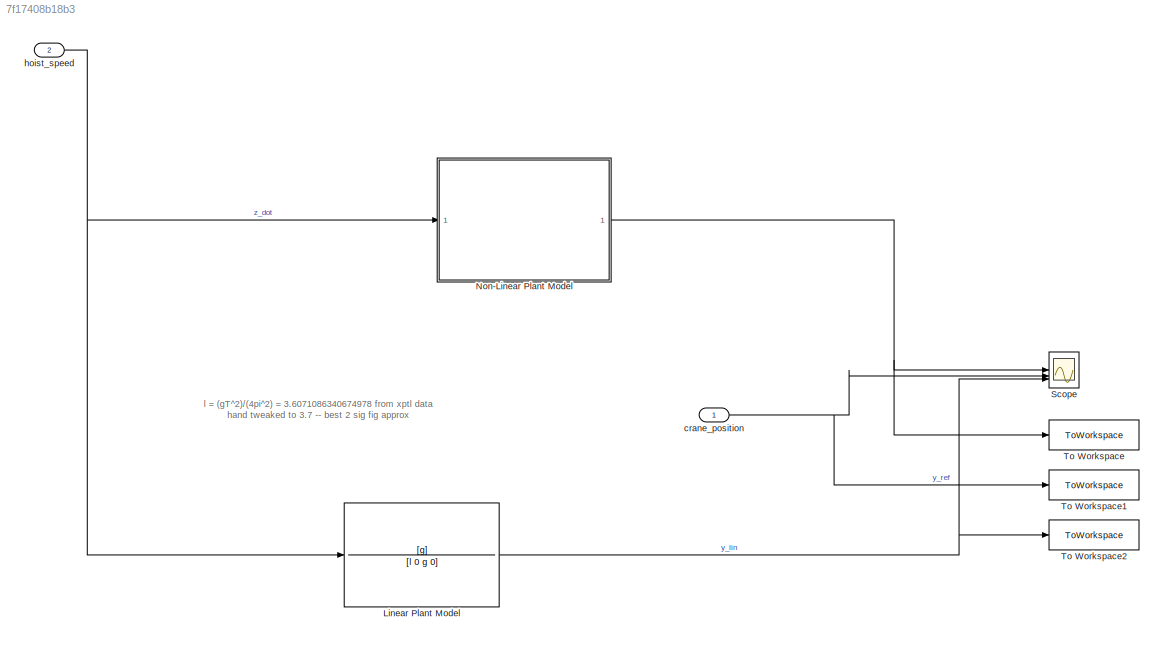
MODEL slx_7f17408b18b3
KIND model
CONFIG AbsTol = auto
CONFIG EnableMultiTasking = off
CONFIG FixedStep = auto
CONFIG MaxStep = auto
CONFIG MinStep = auto
CONFIG RelTol = 1e-3
CONFIG SampleTimeConstraint = Unconstrained
CONFIG SolverName = VariableStepAuto
CONFIG StartTime = 0.0
CONFIG StopTime = 10
WORKSPACE source: mxarray member
WORKSPACE g: Simulink.Parameter (value not decoded)
WORKSPACE l: Simulink.Parameter (value not decoded)
BLOCK [TransferFcn] Linear Plant Model
  Denominator = [l 0 g 0]
  Numerator = [g]
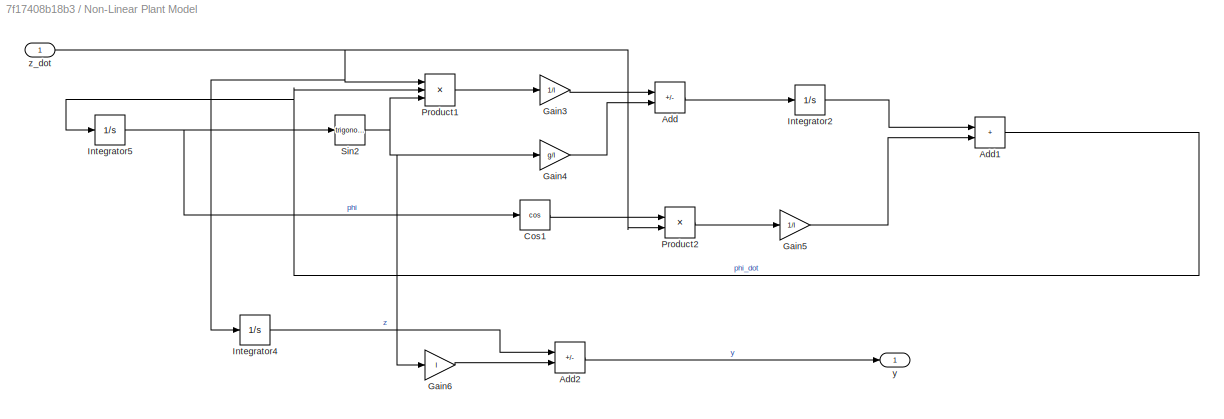
BLOCK [SubSystem] Non-Linear Plant Model
BLOCK [Sum] Non-Linear Plant Model/Add
  IconShape = rectangular
  Inputs = +-
BLOCK [Sum] Non-Linear Plant Model/Add1
  IconShape = rectangular
BLOCK [Sum] Non-Linear Plant Model/Add2
  IconShape = rectangular
  Inputs = +-
BLOCK [Trigonometry] Non-Linear Plant Model/Cos1
  Operator = cos
BLOCK [Gain] Non-Linear Plant Model/Gain3
  Gain = 1/l
BLOCK [Gain] Non-Linear Plant Model/Gain4
  Gain = g/l
BLOCK [Gain] Non-Linear Plant Model/Gain5
  Gain = 1/l
BLOCK [Gain] Non-Linear Plant Model/Gain6
  Gain = l
BLOCK [Integrator] Non-Linear Plant Model/Integrator2
BLOCK [Integrator] Non-Linear Plant Model/Integrator4
BLOCK [Integrator] Non-Linear Plant Model/Integrator5
BLOCK [Product] Non-Linear Plant Model/Product1
  Inputs = 3
BLOCK [Product] Non-Linear Plant Model/Product2
BLOCK [Trigonometry] Non-Linear Plant Model/Sin2
BLOCK [Outport] Non-Linear Plant Model/y
BLOCK [Inport] Non-Linear Plant Model/z_dot
BLOCK [Scope] Scope
  Floating = off
  NumInputPorts = 3
  ScopeSpecificationString = Simulink.scopes.TimeScopeBlockCfg('CurrentConfiguration', extmgr.ConfigurationSet(extmgr.Configuration('Core','General UI',true),extmgr.Configuration('Core','Source UI',true),extmgr.Configuration('Sources','WiredSimulink',true),extmgr.Configuration('Visuals','Time Domain',true,'SerializedDisplays',{struct('MinYLimReal','-0.39922','MaxYLimReal','3.593','YLabelReal','','MinYLimMag','0.00000','MaxYLi...<+1537ch>
BLOCK [ToWorkspace] To Workspace
  FixptAsFi = on
  MaxDataPoints = inf
  SampleTime = -1
  SaveFormat = Timeseries
  VariableName = y_model
BLOCK [ToWorkspace] To Workspace1
  FixptAsFi = on
  MaxDataPoints = inf
  SampleTime = -1
  SaveFormat = Timeseries
  VariableName = y_reference
BLOCK [ToWorkspace] To Workspace2
  FixptAsFi = on
  MaxDataPoints = inf
  SampleTime = -1
  SaveFormat = Timeseries
  VariableName = y_linear
BLOCK [Inport] crane_position
BLOCK [Inport] hoist_speed
  Port = 2
ANNOTATION (root): l = (gT^2)/(4pi^2) = 3.6071086340674978 from xptl data hand tweaked to 3.7 -- best 2 sig fig approx
NET Linear Plant Model:1 -> Scope:3, To Workspace2:1
NET Non-Linear Plant Model/Add1:1 -> Non-Linear Plant Model/Integrator5:1, Non-Linear Plant Model/Product1:2
LINE Non-Linear Plant Model/Add2:1 -> Non-Linear Plant Model/y:1
LINE Non-Linear Plant Model/Add:1 -> Non-Linear Plant Model/Integrator2:1
LINE Non-Linear Plant Model/Cos1:1 -> Non-Linear Plant Model/Product2:1
LINE Non-Linear Plant Model/Gain3:1 -> Non-Linear Plant Model/Add:1
LINE Non-Linear Plant Model/Gain4:1 -> Non-Linear Plant Model/Add:2
LINE Non-Linear Plant Model/Gain5:1 -> Non-Linear Plant Model/Add1:2
LINE Non-Linear Plant Model/Gain6:1 -> Non-Linear Plant Model/Add2:2
LINE Non-Linear Plant Model/Integrator2:1 -> Non-Linear Plant Model/Add1:1
LINE Non-Linear Plant Model/Integrator4:1 -> Non-Linear Plant Model/Add2:1
NET Non-Linear Plant Model/Integrator5:1 -> Non-Linear Plant Model/Cos1:1, Non-Linear Plant Model/Sin2:1
LINE Non-Linear Plant Model/Product1:1 -> Non-Linear Plant Model/Gain3:1
LINE Non-Linear Plant Model/Product2:1 -> Non-Linear Plant Model/Gain5:1
NET Non-Linear Plant Model/Sin2:1 -> Non-Linear Plant Model/Gain4:1, Non-Linear Plant Model/Gain6:1, Non-Linear Plant Model/Product1:3
NET Non-Linear Plant Model/z_dot:1 -> Non-Linear Plant Model/Integrator4:1, Non-Linear Plant Model/Product1:1, Non-Linear Plant Model/Product2:2
NET Non-Linear Plant Model:1 -> Scope:1, To Workspace:1
NET crane_position:1 -> Scope:2, To Workspace1:1
NET hoist_speed:1 -> Linear Plant Model:1, Non-Linear Plant Model:1
note: NET lines group one-source signal fan-out (src -> all destinations, sorted); 1:1 wires keep LINE
